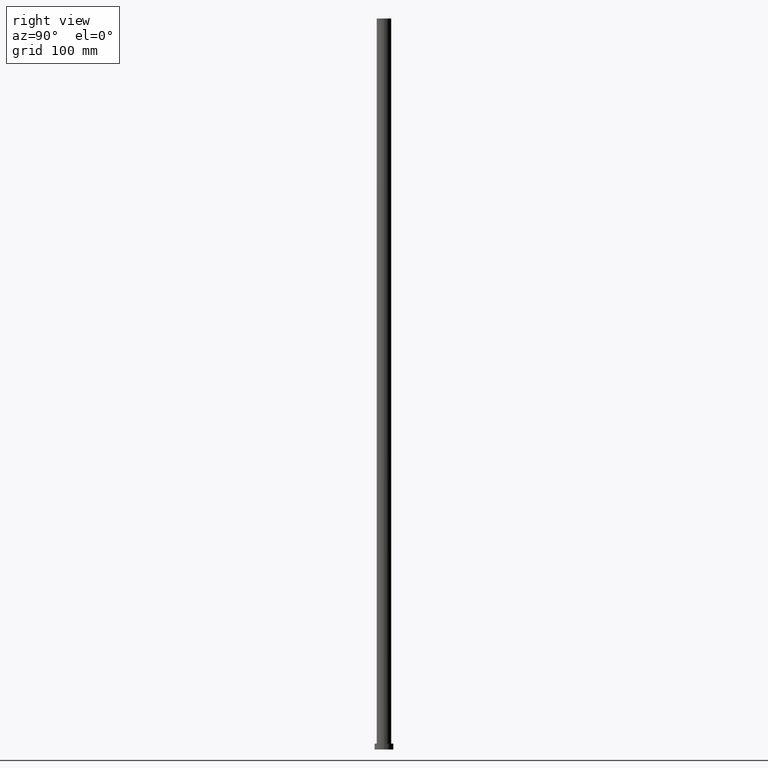
[diagram: clean part render]
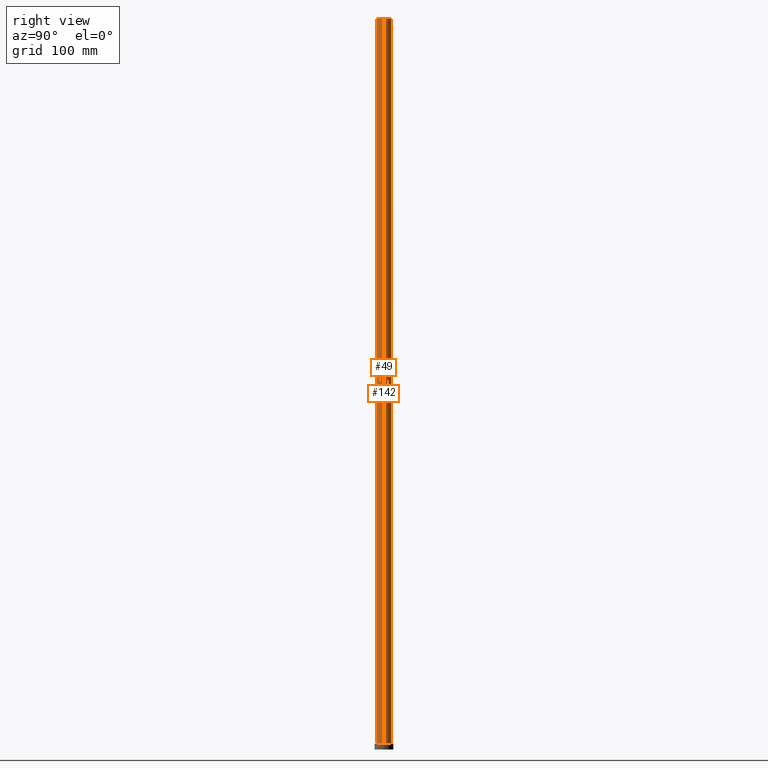
[diagram: same view with one multi-face feature highlighted, each face labeled with its STEP entity id]
A machine part, right view. The highlighted faces form ONE feature: a constant-radius fillet chain: 2 tangent blend faces with common blend radius 10 mm. The faces share edges in the B-rep.
Their STEP definitions:
[1] entity #49 (Cylinder):
#2 = FACE_OUTER_BOUND ( 'NONE', #104, .T. ) ;
#14 = VECTOR ( 'NONE', #244, 1000.000000000000000 ) ;
#16 = CARTESIAN_POINT ( 'NONE',  ( -10.00000000000000000, 0.000000000000000000, 1000.000000000000000 ) ) ;
#17 = ORIENTED_EDGE ( 'NONE', *, *, #34, .T. ) ;
#18 = VECTOR ( 'NONE', #242, 1000.000000000000000 ) ;
#22 = ORIENTED_EDGE ( 'NONE', *, *, #89, .F. ) ;
#24 = AXIS2_PLACEMENT_3D ( 'NONE', #139, #47, #115 ) ;
#26 = LINE ( 'NONE', #166, #14 ) ;
#28 = AXIS2_PLACEMENT_3D ( 'NONE', #67, #227, #91 ) ;
#34 = EDGE_CURVE ( 'NONE', #153, #130, #162, .T. ) ;
#39 = ORIENTED_EDGE ( 'NONE', *, *, #46, .F. ) ;
#42 = CARTESIAN_POINT ( 'NONE',  ( -10.00000000000000000, 0.000000000000000000, 1000.000000000000000 ) ) ;
#45 = CARTESIAN_POINT ( 'NONE',  ( 0.000000000000000000, 0.000000000000000000, 1000.000000000000000 ) ) ;
#46 = EDGE_CURVE ( 'NONE', #181, #220, #26, .T. ) ;
#47 = DIRECTION ( 'NONE',  ( 0.000000000000000000, 0.000000000000000000, 1.000000000000000000 ) ) ;
#49 = ADVANCED_FACE ( 'NONE', ( #2 ), #225, .T. ) ;
#66 = CIRCLE ( 'NONE', #28, 10.00000000000000000 ) ;
#67 = CARTESIAN_POINT ( 'NONE',  ( 0.000000000000000000, 0.000000000000000000, 8.000000000000000000 ) ) ;
#85 = EDGE_CURVE ( 'NONE', #130, #220, #66, .T. ) ;
#89 = EDGE_CURVE ( 'NONE', #153, #181, #177, .T. ) ;
#90 = ORIENTED_EDGE ( 'NONE', *, *, #85, .T. ) ;
#91 = DIRECTION ( 'NONE',  ( 1.000000000000000000, 0.000000000000000000, 0.000000000000000000 ) ) ;
#94 = AXIS2_PLACEMENT_3D ( 'NONE', #45, #210, #109 ) ;
#104 = EDGE_LOOP ( 'NONE', ( #39, #22, #17, #90 ) ) ;
#109 = DIRECTION ( 'NONE',  ( -1.000000000000000000, 0.000000000000000000, 0.000000000000000000 ) ) ;
#115 = DIRECTION ( 'NONE',  ( 1.000000000000000000, 0.000000000000000000, 0.000000000000000000 ) ) ;
#123 = CARTESIAN_POINT ( 'NONE',  ( 10.00000000000000000, 1.224646799147353256E-15, 8.000000000000000000 ) ) ;
#130 = VERTEX_POINT ( 'NONE', #143 ) ;
#139 = CARTESIAN_POINT ( 'NONE',  ( 0.000000000000000000, 0.000000000000000000, 1000.000000000000000 ) ) ;
#143 = CARTESIAN_POINT ( 'NONE',  ( -10.00000000000000000, 0.000000000000000000, 8.000000000000000000 ) ) ;
#153 = VERTEX_POINT ( 'NONE', #16 ) ;
#162 = LINE ( 'NONE', #42, #18 ) ;
#166 = CARTESIAN_POINT ( 'NONE',  ( 10.00000000000000000, 1.224646799147353256E-15, 1000.000000000000000 ) ) ;
#168 = CARTESIAN_POINT ( 'NONE',  ( 10.00000000000000000, 1.224646799147353256E-15, 1000.000000000000000 ) ) ;
#177 = CIRCLE ( 'NONE', #24, 10.00000000000000000 ) ;
#181 = VERTEX_POINT ( 'NONE', #168 ) ;
#210 = DIRECTION ( 'NONE',  ( -0.000000000000000000, -0.000000000000000000, -1.000000000000000000 ) ) ;
#220 = VERTEX_POINT ( 'NONE', #123 ) ;
#225 = CYLINDRICAL_SURFACE ( 'NONE', #94, 10.00000000000000000 ) ;
#227 = DIRECTION ( 'NONE',  ( 0.000000000000000000, 0.000000000000000000, 1.000000000000000000 ) ) ;
#242 = DIRECTION ( 'NONE',  ( -0.000000000000000000, -0.000000000000000000, -1.000000000000000000 ) ) ;
#244 = DIRECTION ( 'NONE',  ( -0.000000000000000000, -0.000000000000000000, -1.000000000000000000 ) ) ;
[2] entity #142 (Cylinder):
#6 = DIRECTION ( 'NONE',  ( 1.000000000000000000, 0.000000000000000000, 0.000000000000000000 ) ) ;
#14 = VECTOR ( 'NONE', #244, 1000.000000000000000 ) ;
#16 = CARTESIAN_POINT ( 'NONE',  ( -10.00000000000000000, 0.000000000000000000, 1000.000000000000000 ) ) ;
#18 = VECTOR ( 'NONE', #242, 1000.000000000000000 ) ;
#20 = DIRECTION ( 'NONE',  ( 0.000000000000000000, 0.000000000000000000, 1.000000000000000000 ) ) ;
#26 = LINE ( 'NONE', #166, #14 ) ;
#34 = EDGE_CURVE ( 'NONE', #153, #130, #162, .T. ) ;
#38 = CARTESIAN_POINT ( 'NONE',  ( 0.000000000000000000, 0.000000000000000000, 1000.000000000000000 ) ) ;
#42 = CARTESIAN_POINT ( 'NONE',  ( -10.00000000000000000, 0.000000000000000000, 1000.000000000000000 ) ) ;
#46 = EDGE_CURVE ( 'NONE', #181, #220, #26, .T. ) ;
#62 = DIRECTION ( 'NONE',  ( 1.000000000000000000, 0.000000000000000000, 0.000000000000000000 ) ) ;
#73 = EDGE_CURVE ( 'NONE', #181, #153, #102, .T. ) ;
#97 = CARTESIAN_POINT ( 'NONE',  ( 0.000000000000000000, 0.000000000000000000, 1000.000000000000000 ) ) ;
#102 = CIRCLE ( 'NONE', #186, 10.00000000000000000 ) ;
#113 = ORIENTED_EDGE ( 'NONE', *, *, #73, .F. ) ;
#123 = CARTESIAN_POINT ( 'NONE',  ( 10.00000000000000000, 1.224646799147353256E-15, 8.000000000000000000 ) ) ;
#130 = VERTEX_POINT ( 'NONE', #143 ) ;
#135 = ORIENTED_EDGE ( 'NONE', *, *, #34, .F. ) ;
#142 = ADVANCED_FACE ( 'NONE', ( #219 ), #248, .T. ) ;
#143 = CARTESIAN_POINT ( 'NONE',  ( -10.00000000000000000, 0.000000000000000000, 8.000000000000000000 ) ) ;
#147 = DIRECTION ( 'NONE',  ( -1.000000000000000000, 0.000000000000000000, 0.000000000000000000 ) ) ;
#153 = VERTEX_POINT ( 'NONE', #16 ) ;
#162 = LINE ( 'NONE', #42, #18 ) ;
#164 = CARTESIAN_POINT ( 'NONE',  ( 0.000000000000000000, 0.000000000000000000, 8.000000000000000000 ) ) ;
#166 = CARTESIAN_POINT ( 'NONE',  ( 10.00000000000000000, 1.224646799147353256E-15, 1000.000000000000000 ) ) ;
#168 = CARTESIAN_POINT ( 'NONE',  ( 10.00000000000000000, 1.224646799147353256E-15, 1000.000000000000000 ) ) ;
#179 = CIRCLE ( 'NONE', #206, 10.00000000000000000 ) ;
#181 = VERTEX_POINT ( 'NONE', #168 ) ;
#184 = AXIS2_PLACEMENT_3D ( 'NONE', #38, #199, #147 ) ;
#186 = AXIS2_PLACEMENT_3D ( 'NONE', #97, #188, #6 ) ;
#188 = DIRECTION ( 'NONE',  ( 0.000000000000000000, 0.000000000000000000, 1.000000000000000000 ) ) ;
#199 = DIRECTION ( 'NONE',  ( -0.000000000000000000, -0.000000000000000000, -1.000000000000000000 ) ) ;
#200 = ORIENTED_EDGE ( 'NONE', *, *, #234, .T. ) ;
#202 = ORIENTED_EDGE ( 'NONE', *, *, #46, .T. ) ;
#206 = AXIS2_PLACEMENT_3D ( 'NONE', #164, #20, #62 ) ;
#219 = FACE_OUTER_BOUND ( 'NONE', #243, .T. ) ;
#220 = VERTEX_POINT ( 'NONE', #123 ) ;
#234 = EDGE_CURVE ( 'NONE', #220, #130, #179, .T. ) ;
#242 = DIRECTION ( 'NONE',  ( -0.000000000000000000, -0.000000000000000000, -1.000000000000000000 ) ) ;
#243 = EDGE_LOOP ( 'NONE', ( #113, #202, #200, #135 ) ) ;
#244 = DIRECTION ( 'NONE',  ( -0.000000000000000000, -0.000000000000000000, -1.000000000000000000 ) ) ;
#248 = CYLINDRICAL_SURFACE ( 'NONE', #184, 10.00000000000000000 ) ;